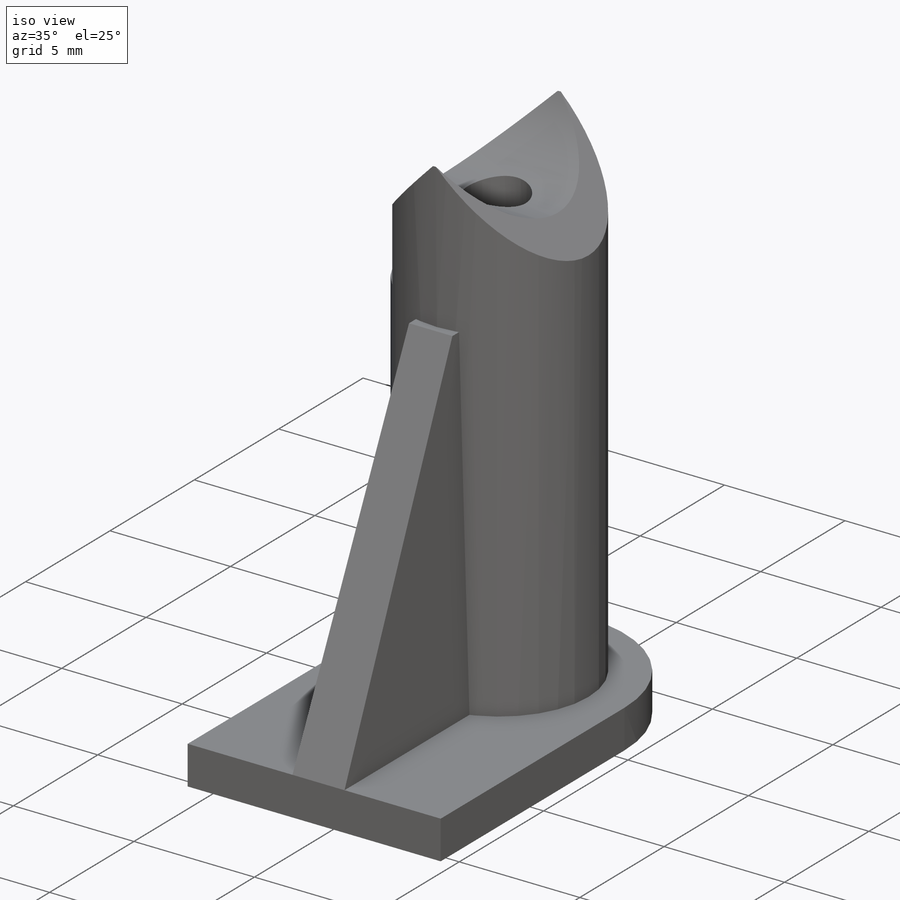
[diagram: iso view]
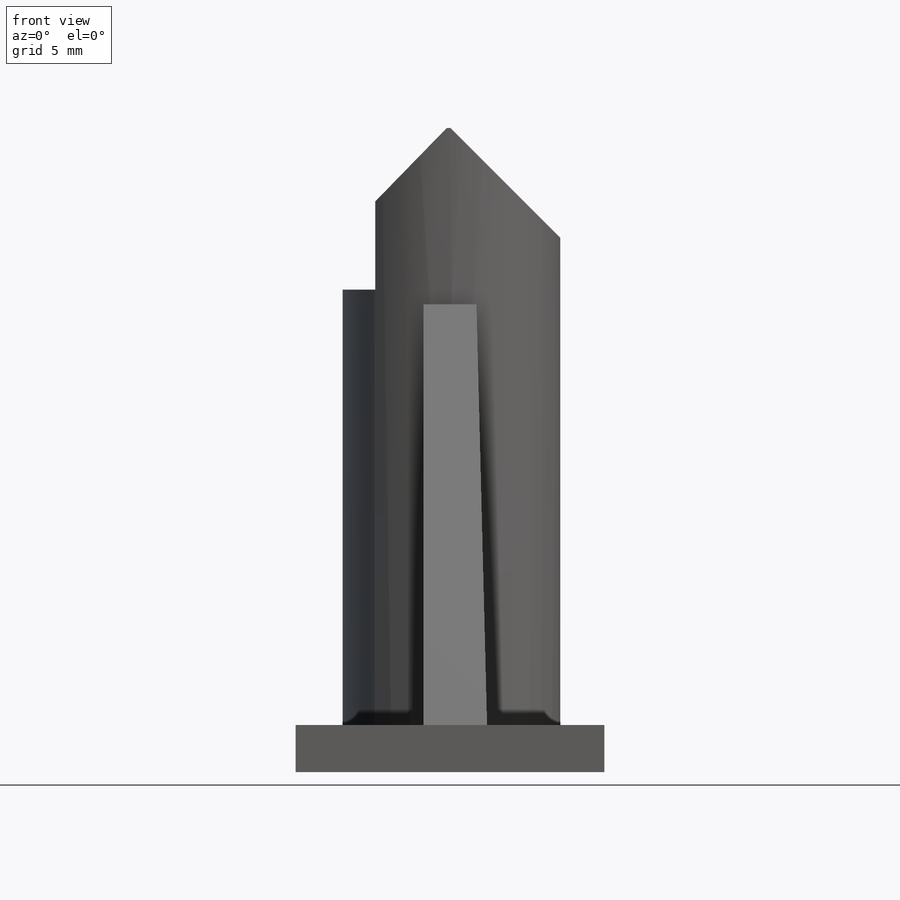
[diagram: front view]
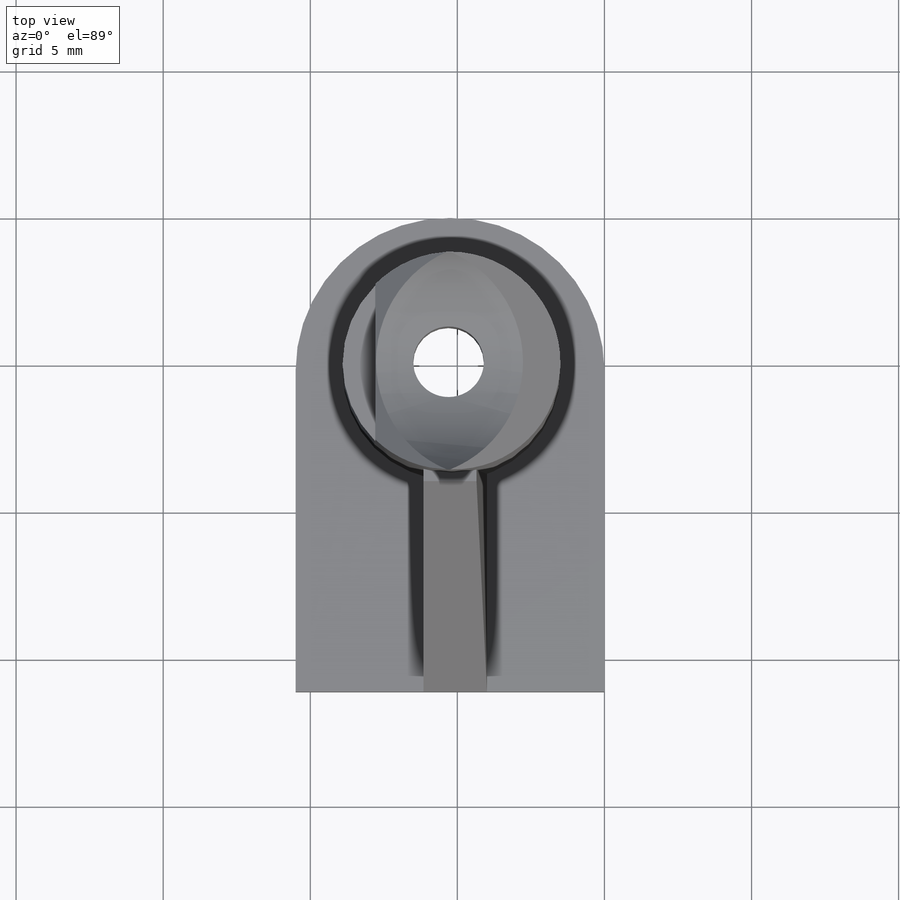
[diagram: top view]
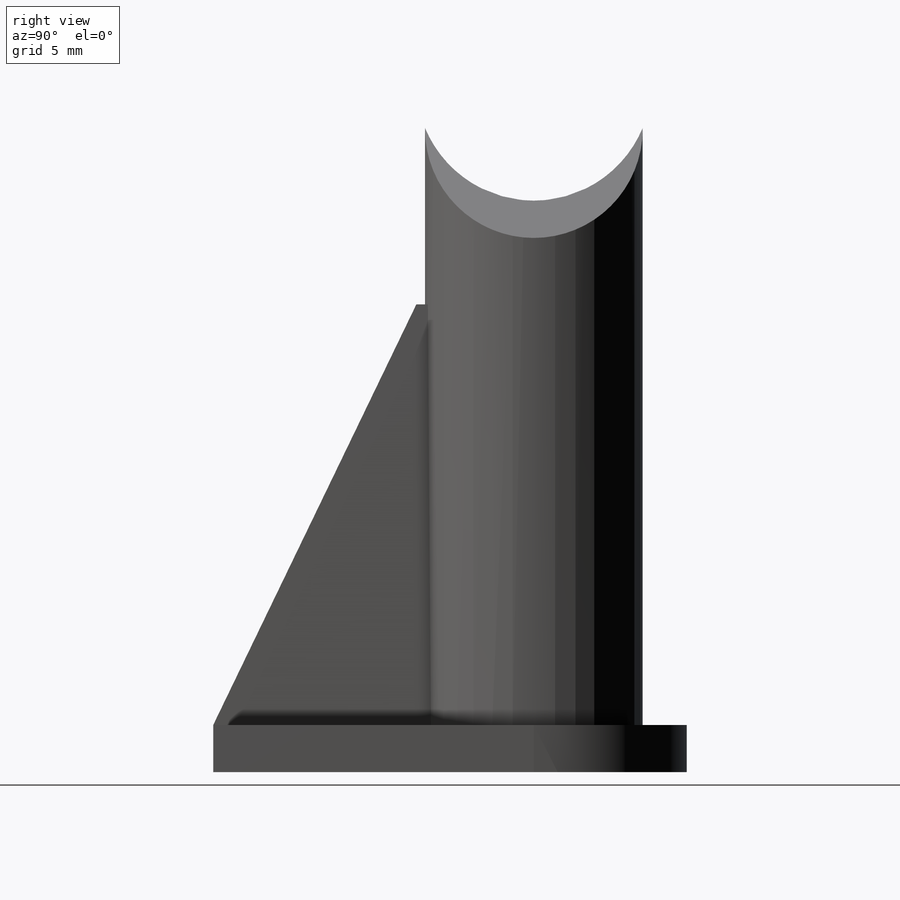
[diagram: right view]
SOLIDWORKS PART (.sldprt)
format: sldprt  version: not decoded by parser v0  size: 243,712 bytes
history: native  units: mm
features: sketch x9, cut_extrude x6, extrude x3, material x1, fillet x1, chamfer x1, mirror x1, delete_body x1 (+13 scaffold rows collapsed)
feature tree (36):
  scaffold x13  (default folders/planes/origin — collapsed)
  material  "Material <not specified>"
  sketch  "Sketch1"  dims[D1=16.1mm D2=10.5mm]
  extrude  "Boss-Extrude1"  Depth=1.6mm
  fillet  "Fillet1"  Radius=5.2mm
  sketch  "Sketch2"  dims[D1=7.4mm]
  extrude  "Boss-Extrude2"  Depth=20.3mm
  sketch  "Sketch3"
  cut_extrude  "Cut-Extrude1"  Depth=20.3mm
  sketch  "Sketch4"
  cut_extrude  "Cut-Extrude2"  Depth=14.8mm
  sketch  "Sketch5"  dims[D1=3.0mm]
  cut_extrude  "Cut-Extrude4"  Depth=20.3mm
  sketch  "Sketch6"  dims[D1=4.55mm]
  cut_extrude  "Cut-Extrude5"  Depth=16.3mm
  chamfer  "Chamfer1"  Distance=1mm Angle=45deg
  sketch  "Sketch7"  dims[D1=2.4mm]
  cut_extrude  "Cut-Extrude6"  [1 undecoded]
  sketch  "Sketch8"  dims[D1=1.8mm D2=14.3mm]
  extrude  "Boss-Extrude4"  Depth=16.3mm
  sketch  "Sketch11"
  cut_extrude  "Cut-Extrude8"  [1 undecoded]
  mirror  "Mirror3"
  delete_body  "Body-Delete1"
decode coverage: 15 of 22 modeling features carry decoded parameters
note: 2 parameter values undecoded
note: suppression state not decoded; provenance and decode notes live in map.json
